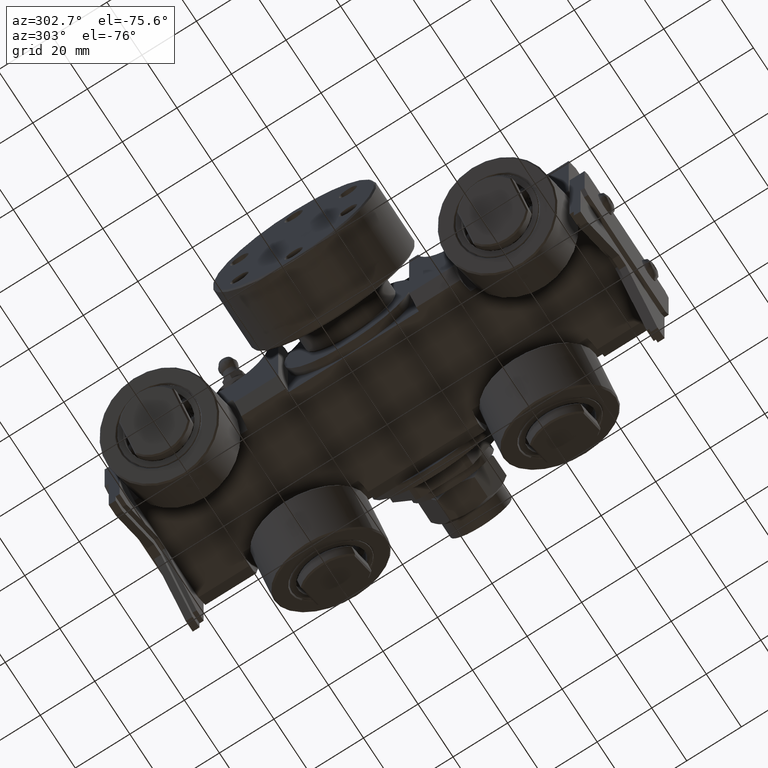
[diagram: clean part render]
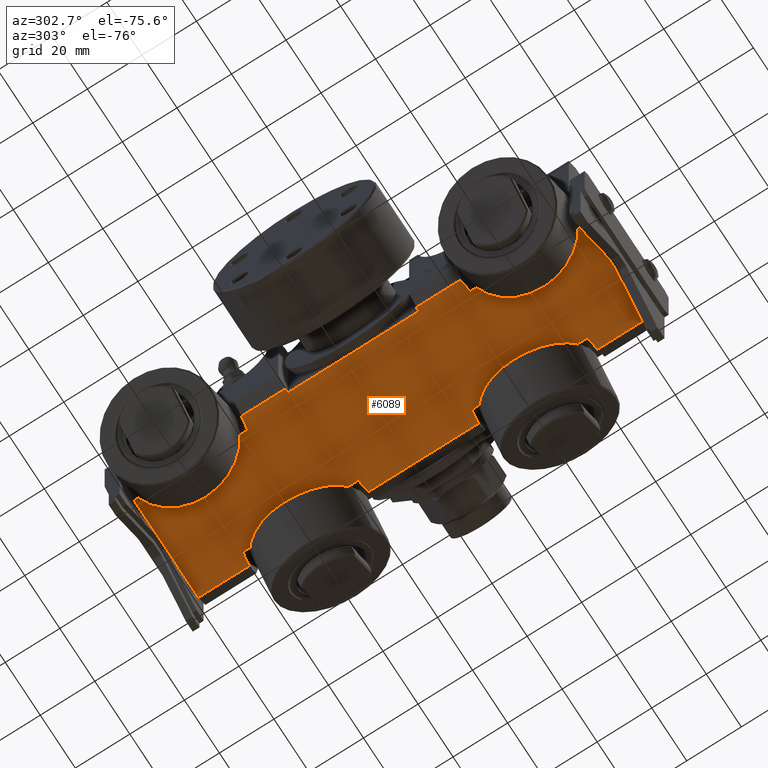
[diagram: same view with one face highlighted and labeled with its STEP entity id]
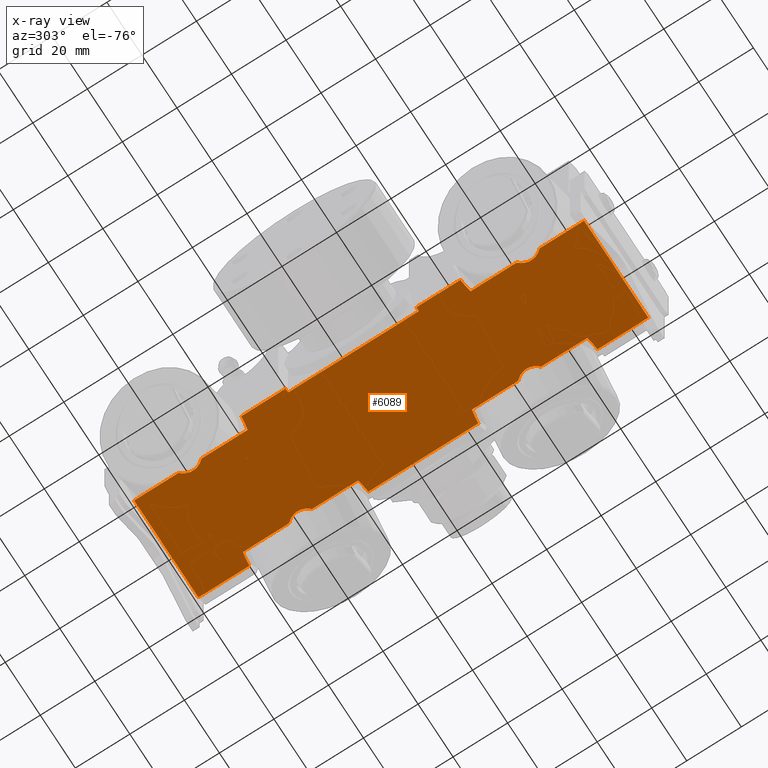
[diagram: x-ray of the same camera — body ghosted, the highlighted face saturated]
A machine part, auxiliary view. The second image highlights one B-rep face of the part: STEP entity #6089.
The next image is the same camera in x-ray: the body ghosted, the highlighted face saturated — about 0% of this face is hidden behind the body in this view.
In plain terms, the highlighted planar face has unit normal (-0, 0, -1).
Its self-contained STEP definition (entity closure, byte-faithful):
#358=ELLIPSE('',#6862,31.1126983722081,22.);
#359=ELLIPSE('',#6863,10.6066017177982,7.5);
#360=ELLIPSE('',#6864,31.1126983722081,22.);
#361=ELLIPSE('',#6865,10.6066017177982,7.5);
#362=ELLIPSE('',#6866,10.6066017177982,7.5);
#363=ELLIPSE('',#6867,31.1126983722081,22.);
#364=ELLIPSE('',#6868,31.1126983722081,22.);
#365=ELLIPSE('',#6869,10.6066017177982,7.5);
#366=ELLIPSE('',#6870,10.6066017177982,7.5);
#367=ELLIPSE('',#6871,31.1126983722081,22.);
#368=ELLIPSE('',#6872,10.6066017177982,7.5);
#369=ELLIPSE('',#6873,31.1126983722081,22.);
#493=PLANE('',#6861);
#656=FACE_OUTER_BOUND('',#1004,.T.);
#1004=EDGE_LOOP('',(#4197,#4198,#4199,#4200,#4201,#4202,#4203,#4204,#4205,
#4206,#4207,#4208,#4209,#4210,#4211,#4212,#4213,#4214,#4215,#4216,#4217,
#4218,#4219,#4220,#4221,#4222,#4223,#4224,#4225,#4226));
#1893=LINE('',#9799,#2262);
#1899=LINE('',#9811,#2268);
#1902=LINE('',#9831,#2271);
#1907=LINE('',#9841,#2276);
#1908=LINE('',#9845,#2277);
#1909=LINE('',#9849,#2278);
#1910=LINE('',#9851,#2279);
#1911=LINE('',#9853,#2280);
#1912=LINE('',#9857,#2281);
#1913=LINE('',#9863,#2282);
#1914=LINE('',#9867,#2283);
#1915=LINE('',#9871,#2284);
#1916=LINE('',#9877,#2285);
#1917=LINE('',#9881,#2286);
#1918=LINE('',#9883,#2287);
#1919=LINE('',#9885,#2288);
#1920=LINE('',#9889,#2289);
#1921=LINE('',#9892,#2290);
#2262=VECTOR('',#7640,10.);
#2268=VECTOR('',#7648,10.);
#2271=VECTOR('',#7653,10.);
#2276=VECTOR('',#7660,10.);
#2277=VECTOR('',#7663,10.);
#2278=VECTOR('',#7666,10.);
#2279=VECTOR('',#7667,10.);
#2280=VECTOR('',#7668,10.);
#2281=VECTOR('',#7671,10.);
#2282=VECTOR('',#7676,10.);
#2283=VECTOR('',#7679,10.);
#2284=VECTOR('',#7682,10.);
#2285=VECTOR('',#7687,10.);
#2286=VECTOR('',#7690,10.);
#2287=VECTOR('',#7691,10.);
#2288=VECTOR('',#7692,10.);
#2289=VECTOR('',#7695,10.);
#2290=VECTOR('',#7698,10.);
#2643=VERTEX_POINT('',#9797);
#2644=VERTEX_POINT('',#9798);
#2649=VERTEX_POINT('',#9810);
#2651=VERTEX_POINT('',#9830);
#2655=VERTEX_POINT('',#9840);
#2656=VERTEX_POINT('',#9842);
#2657=VERTEX_POINT('',#9844);
#2658=VERTEX_POINT('',#9846);
#2659=VERTEX_POINT('',#9848);
#2660=VERTEX_POINT('',#9850);
#2661=VERTEX_POINT('',#9852);
#2662=VERTEX_POINT('',#9854);
#2663=VERTEX_POINT('',#9856);
#2664=VERTEX_POINT('',#9858);
#2665=VERTEX_POINT('',#9860);
#2666=VERTEX_POINT('',#9862);
#2667=VERTEX_POINT('',#9864);
#2668=VERTEX_POINT('',#9866);
#2669=VERTEX_POINT('',#9868);
#2670=VERTEX_POINT('',#9870);
#2671=VERTEX_POINT('',#9872);
#2672=VERTEX_POINT('',#9874);
#2673=VERTEX_POINT('',#9876);
#2674=VERTEX_POINT('',#9878);
#2675=VERTEX_POINT('',#9880);
#2676=VERTEX_POINT('',#9882);
#2677=VERTEX_POINT('',#9884);
#2678=VERTEX_POINT('',#9886);
#2679=VERTEX_POINT('',#9888);
#2680=VERTEX_POINT('',#9890);
#3260=EDGE_CURVE('',#2643,#2644,#1893,.T.);
#3266=EDGE_CURVE('',#2649,#2643,#1899,.T.);
#3270=EDGE_CURVE('',#2651,#2649,#1902,.T.);
#3275=EDGE_CURVE('',#2655,#2644,#1907,.T.);
#3276=EDGE_CURVE('',#2655,#2656,#358,.T.);
#3277=EDGE_CURVE('',#2656,#2657,#1908,.T.);
#3278=EDGE_CURVE('',#2657,#2658,#359,.T.);
#3279=EDGE_CURVE('',#2658,#2659,#1909,.T.);
#3280=EDGE_CURVE('',#2660,#2659,#1910,.T.);
#3281=EDGE_CURVE('',#2661,#2660,#1911,.T.);
#3282=EDGE_CURVE('',#2661,#2662,#360,.T.);
#3283=EDGE_CURVE('',#2662,#2663,#1912,.T.);
#3284=EDGE_CURVE('',#2663,#2664,#361,.T.);
#3285=EDGE_CURVE('',#2664,#2665,#362,.T.);
#3286=EDGE_CURVE('',#2665,#2666,#1913,.T.);
#3287=EDGE_CURVE('',#2666,#2667,#363,.T.);
#3288=EDGE_CURVE('',#2668,#2667,#1914,.T.);
#3289=EDGE_CURVE('',#2668,#2669,#364,.T.);
#3290=EDGE_CURVE('',#2669,#2670,#1915,.T.);
#3291=EDGE_CURVE('',#2670,#2671,#365,.T.);
#3292=EDGE_CURVE('',#2671,#2672,#366,.T.);
#3293=EDGE_CURVE('',#2672,#2673,#1916,.T.);
#3294=EDGE_CURVE('',#2673,#2674,#367,.T.);
#3295=EDGE_CURVE('',#2675,#2674,#1917,.T.);
#3296=EDGE_CURVE('',#2676,#2675,#1918,.T.);
#3297=EDGE_CURVE('',#2676,#2677,#1919,.T.);
#3298=EDGE_CURVE('',#2677,#2678,#368,.T.);
#3299=EDGE_CURVE('',#2678,#2679,#1920,.T.);
#3300=EDGE_CURVE('',#2679,#2680,#369,.T.);
#3301=EDGE_CURVE('',#2651,#2680,#1921,.T.);
#4197=ORIENTED_EDGE('',*,*,#3270,.T.);
#4198=ORIENTED_EDGE('',*,*,#3266,.T.);
#4199=ORIENTED_EDGE('',*,*,#3260,.T.);
#4200=ORIENTED_EDGE('',*,*,#3275,.F.);
#4201=ORIENTED_EDGE('',*,*,#3276,.T.);
#4202=ORIENTED_EDGE('',*,*,#3277,.T.);
#4203=ORIENTED_EDGE('',*,*,#3278,.T.);
#4204=ORIENTED_EDGE('',*,*,#3279,.T.);
#4205=ORIENTED_EDGE('',*,*,#3280,.F.);
#4206=ORIENTED_EDGE('',*,*,#3281,.F.);
#4207=ORIENTED_EDGE('',*,*,#3282,.T.);
#4208=ORIENTED_EDGE('',*,*,#3283,.T.);
#4209=ORIENTED_EDGE('',*,*,#3284,.T.);
#4210=ORIENTED_EDGE('',*,*,#3285,.T.);
#4211=ORIENTED_EDGE('',*,*,#3286,.T.);
#4212=ORIENTED_EDGE('',*,*,#3287,.T.);
#4213=ORIENTED_EDGE('',*,*,#3288,.F.);
#4214=ORIENTED_EDGE('',*,*,#3289,.T.);
#4215=ORIENTED_EDGE('',*,*,#3290,.T.);
#4216=ORIENTED_EDGE('',*,*,#3291,.T.);
#4217=ORIENTED_EDGE('',*,*,#3292,.T.);
#4218=ORIENTED_EDGE('',*,*,#3293,.T.);
#4219=ORIENTED_EDGE('',*,*,#3294,.T.);
#4220=ORIENTED_EDGE('',*,*,#3295,.F.);
#4221=ORIENTED_EDGE('',*,*,#3296,.F.);
#4222=ORIENTED_EDGE('',*,*,#3297,.T.);
#4223=ORIENTED_EDGE('',*,*,#3298,.T.);
#4224=ORIENTED_EDGE('',*,*,#3299,.T.);
#4225=ORIENTED_EDGE('',*,*,#3300,.T.);
#4226=ORIENTED_EDGE('',*,*,#3301,.F.);
#6089=ADVANCED_FACE('',(#656),#493,.T.);
#6861=AXIS2_PLACEMENT_3D('',#9839,#7658,#7659);
#6862=AXIS2_PLACEMENT_3D('',#9843,#7661,#7662);
#6863=AXIS2_PLACEMENT_3D('',#9847,#7664,#7665);
#6864=AXIS2_PLACEMENT_3D('',#9855,#7669,#7670);
#6865=AXIS2_PLACEMENT_3D('',#9859,#7672,#7673);
#6866=AXIS2_PLACEMENT_3D('',#9861,#7674,#7675);
#6867=AXIS2_PLACEMENT_3D('',#9865,#7677,#7678);
#6868=AXIS2_PLACEMENT_3D('',#9869,#7680,#7681);
#6869=AXIS2_PLACEMENT_3D('',#9873,#7683,#7684);
#6870=AXIS2_PLACEMENT_3D('',#9875,#7685,#7686);
#6871=AXIS2_PLACEMENT_3D('',#9879,#7688,#7689);
#6872=AXIS2_PLACEMENT_3D('',#9887,#7693,#7694);
#6873=AXIS2_PLACEMENT_3D('',#9891,#7696,#7697);
#7640=DIRECTION('',(-1.,0.,8.97149918889015E-17));
#7648=DIRECTION('',(0.,1.,0.));
#7653=DIRECTION('',(1.,0.,-8.97149918889015E-17));
#7658=DIRECTION('center_axis',(-8.97149918889015E-17,0.,-1.));
#7659=DIRECTION('ref_axis',(-1.,0.,8.97149918889015E-17));
#7660=DIRECTION('',(0.,-1.,0.));
#7661=DIRECTION('center_axis',(8.97149918889015E-17,0.,1.));
#7662=DIRECTION('ref_axis',(-1.,0.,1.42735678062161E-16));
#7663=DIRECTION('',(0.,1.,0.));
#7664=DIRECTION('center_axis',(8.97149918889015E-17,0.,1.));
#7665=DIRECTION('ref_axis',(1.,0.,-1.04672830578918E-16));
#7666=DIRECTION('',(0.,1.,0.));
#7667=DIRECTION('',(-1.,0.,8.97149918889015E-17));
#7668=DIRECTION('',(0.,1.,0.));
#7669=DIRECTION('center_axis',(8.97149918889015E-17,0.,1.));
#7670=DIRECTION('ref_axis',(-1.,8.0378008344044E-17,2.14103517093242E-16));
#7671=DIRECTION('',(0.,-1.,0.));
#7672=DIRECTION('center_axis',(8.97149918889015E-17,0.,1.));
#7673=DIRECTION('ref_axis',(1.,0.,0.));
#7674=DIRECTION('center_axis',(8.97149918889015E-17,0.,1.));
#7675=DIRECTION('ref_axis',(1.,0.,0.));
#7676=DIRECTION('',(0.,-1.,0.));
#7677=DIRECTION('center_axis',(8.97149918889015E-17,0.,1.));
#7678=DIRECTION('ref_axis',(-1.,8.0378008344044E-17,2.14103517093242E-16));
#7679=DIRECTION('',(0.,1.,0.));
#7680=DIRECTION('center_axis',(8.97149918889015E-17,0.,1.));
#7681=DIRECTION('ref_axis',(-1.,3.30775974705265E-16,2.14103517093242E-16));
#7682=DIRECTION('',(0.,-1.,0.));
#7683=DIRECTION('center_axis',(8.97149918889015E-17,0.,1.));
#7684=DIRECTION('ref_axis',(1.,0.,0.));
#7685=DIRECTION('center_axis',(8.97149918889015E-17,0.,1.));
#7686=DIRECTION('ref_axis',(1.,0.,0.));
#7687=DIRECTION('',(0.,-1.,0.));
#7688=DIRECTION('center_axis',(8.97149918889015E-17,0.,1.));
#7689=DIRECTION('ref_axis',(-1.,3.30775974705265E-16,2.14103517093242E-16));
#7690=DIRECTION('',(0.,1.,0.));
#7691=DIRECTION('',(1.,0.,-8.97149918889015E-17));
#7692=DIRECTION('',(0.,1.,0.));
#7693=DIRECTION('center_axis',(8.97149918889015E-17,0.,1.));
#7694=DIRECTION('ref_axis',(1.,0.,-1.04672830578918E-16));
#7695=DIRECTION('',(0.,1.,0.));
#7696=DIRECTION('center_axis',(8.97149918889015E-17,0.,1.));
#7697=DIRECTION('ref_axis',(-1.,4.66234956260125E-17,1.42735678062161E-16));
#7698=DIRECTION('',(0.,-1.,0.));
#9797=CARTESIAN_POINT('',(-19.25,24.,-24.75));
#9798=CARTESIAN_POINT('',(-20.714,24.,-24.75));
#9799=CARTESIAN_POINT('',(-7.97341990412613E-15,24.,-24.75));
#9810=CARTESIAN_POINT('',(-19.25,-24.,-24.75));
#9811=CARTESIAN_POINT('',(-19.25,-2.22044604925031E-15,-24.75));
#9830=CARTESIAN_POINT('',(-20.714,-24.,-24.75));
#9831=CARTESIAN_POINT('',(3.5325278056255E-15,-24.,-24.75));
#9839=CARTESIAN_POINT('Origin',(24.75,0.,-24.75));
#9840=CARTESIAN_POINT('',(-20.714,40.1858909877117,-24.75));
#9841=CARTESIAN_POINT('',(-20.714,0.,-24.75));
#9842=CARTESIAN_POINT('',(-15.9763845660501,40.8928486974538,-24.75));
#9843=CARTESIAN_POINT('Origin',(-24.7500000000001,62.,-24.75));
#9844=CARTESIAN_POINT('',(-15.9763845660501,57.7855206598469,-24.75));
#9845=CARTESIAN_POINT('',(-15.9763845660501,31.,-24.75));
#9846=CARTESIAN_POINT('',(-15.9763845660501,66.2144793401531,-24.75));
#9847=CARTESIAN_POINT('Origin',(-24.7500000000001,62.,-24.75));
#9848=CARTESIAN_POINT('',(-15.9763845660501,82.5,-24.75));
#9849=CARTESIAN_POINT('',(-15.9763845660501,31.,-24.75));
#9850=CARTESIAN_POINT('',(20.714,82.5,-24.75));
#9851=CARTESIAN_POINT('',(24.75,82.5,-24.75));
#9852=CARTESIAN_POINT('',(20.714,63.8141090122884,-24.75));
#9853=CARTESIAN_POINT('',(20.714,0.,-24.75));
#9854=CARTESIAN_POINT('',(15.9763845660501,63.1071513025462,-24.75));
#9855=CARTESIAN_POINT('Origin',(24.75,42.,-24.75));
#9856=CARTESIAN_POINT('',(15.9763845660501,46.2144793401532,-24.75));
#9857=CARTESIAN_POINT('',(15.9763845660501,21.,-24.75));
#9858=CARTESIAN_POINT('',(14.1433982822018,42.,-24.75));
#9859=CARTESIAN_POINT('Origin',(24.75,42.,-24.75));
#9860=CARTESIAN_POINT('',(15.9763845660501,37.7855206598467,-24.75));
#9861=CARTESIAN_POINT('Origin',(24.75,42.,-24.75));
#9862=CARTESIAN_POINT('',(15.9763845660501,20.8928486974538,-24.75));
#9863=CARTESIAN_POINT('',(15.9763845660501,21.,-24.75));
#9864=CARTESIAN_POINT('',(20.714,20.1858909877116,-24.75));
#9865=CARTESIAN_POINT('Origin',(24.75,42.,-24.75));
#9866=CARTESIAN_POINT('',(20.714,-20.1858909877116,-24.75));
#9867=CARTESIAN_POINT('',(20.714,0.,-24.75));
#9868=CARTESIAN_POINT('',(15.9763845660501,-20.8928486974538,-24.75));
#9869=CARTESIAN_POINT('Origin',(24.75,-42.,-24.75));
#9870=CARTESIAN_POINT('',(15.9763845660501,-37.7855206598468,-24.75));
#9871=CARTESIAN_POINT('',(15.9763845660501,-21.,-24.75));
#9872=CARTESIAN_POINT('',(14.1433982822018,-42.,-24.75));
#9873=CARTESIAN_POINT('Origin',(24.75,-42.,-24.75));
#9874=CARTESIAN_POINT('',(15.9763845660501,-46.2144793401532,-24.75));
#9875=CARTESIAN_POINT('Origin',(24.75,-42.,-24.75));
#9876=CARTESIAN_POINT('',(15.9763845660501,-63.1071513025462,-24.75));
#9877=CARTESIAN_POINT('',(15.9763845660501,-21.,-24.75));
#9878=CARTESIAN_POINT('',(20.714,-63.8141090122883,-24.75));
#9879=CARTESIAN_POINT('Origin',(24.75,-42.,-24.75));
#9880=CARTESIAN_POINT('',(20.714,-82.5,-24.75));
#9881=CARTESIAN_POINT('',(20.714,0.,-24.75));
#9882=CARTESIAN_POINT('',(-15.9763845660501,-82.5,-24.75));
#9883=CARTESIAN_POINT('',(24.75,-82.5,-24.75));
#9884=CARTESIAN_POINT('',(-15.9763845660501,-66.2144793401531,-24.75));
#9885=CARTESIAN_POINT('',(-15.9763845660501,-31.,-24.75));
#9886=CARTESIAN_POINT('',(-15.9763845660501,-57.7855206598469,-24.75));
#9887=CARTESIAN_POINT('Origin',(-24.7500000000001,-62.,-24.75));
#9888=CARTESIAN_POINT('',(-15.9763845660501,-40.8928486974538,-24.75));
#9889=CARTESIAN_POINT('',(-15.9763845660501,-31.,-24.75));
#9890=CARTESIAN_POINT('',(-20.714,-40.1858909877117,-24.75));
#9891=CARTESIAN_POINT('Origin',(-24.75,-62.,-24.75));
#9892=CARTESIAN_POINT('',(-20.714,0.,-24.75));